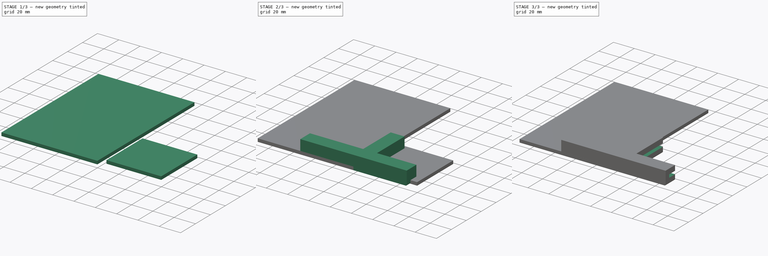
[diagram: build sequence overview — one tinted view per stage of 3, left to right]
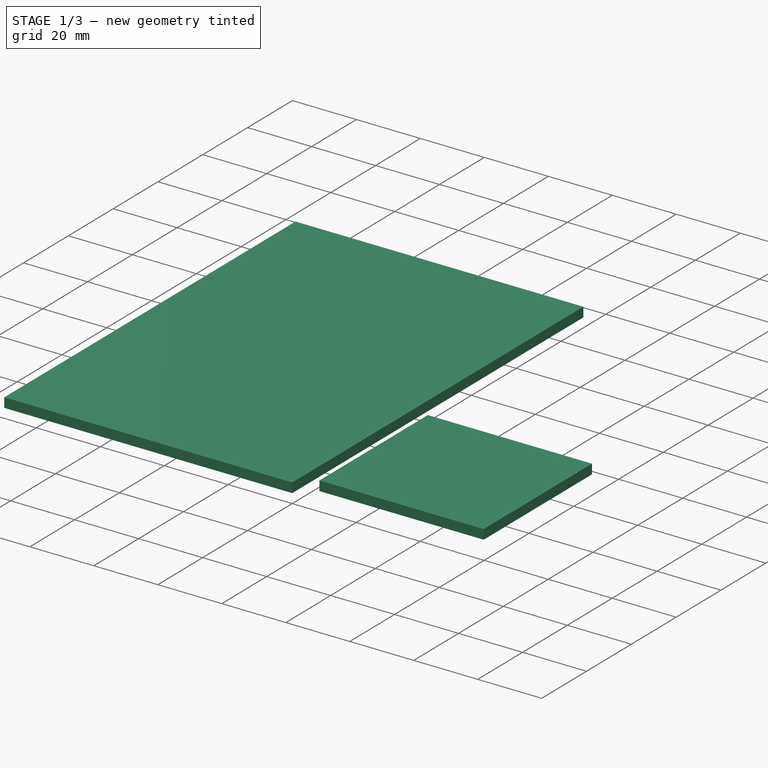
[diagram: stage 1 of 3 — iso view after this stage's code; geometry added in this stage tinted green]
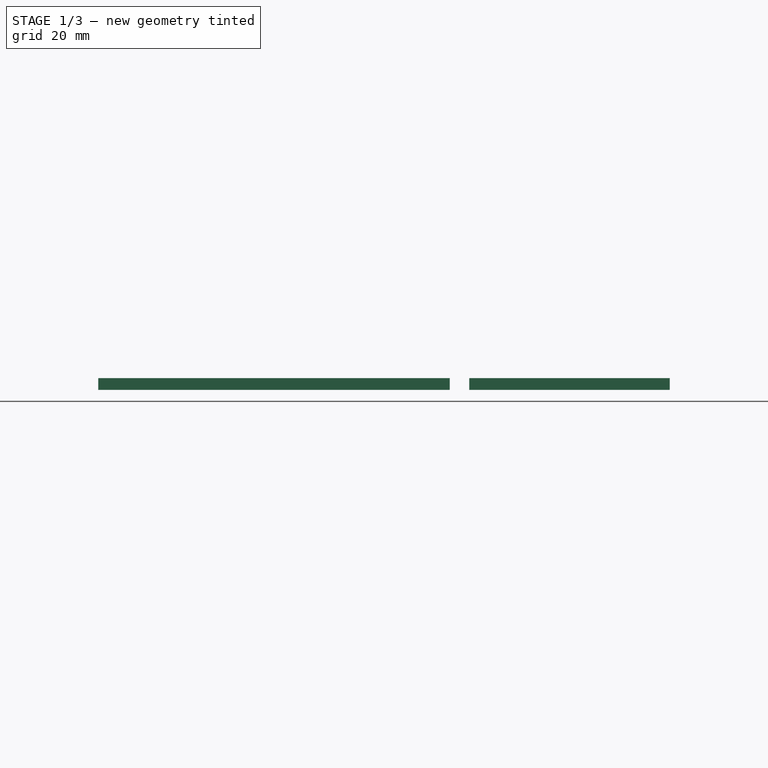
[diagram: stage 1 of 3 — front view after this stage's code; geometry added in this stage tinted green]
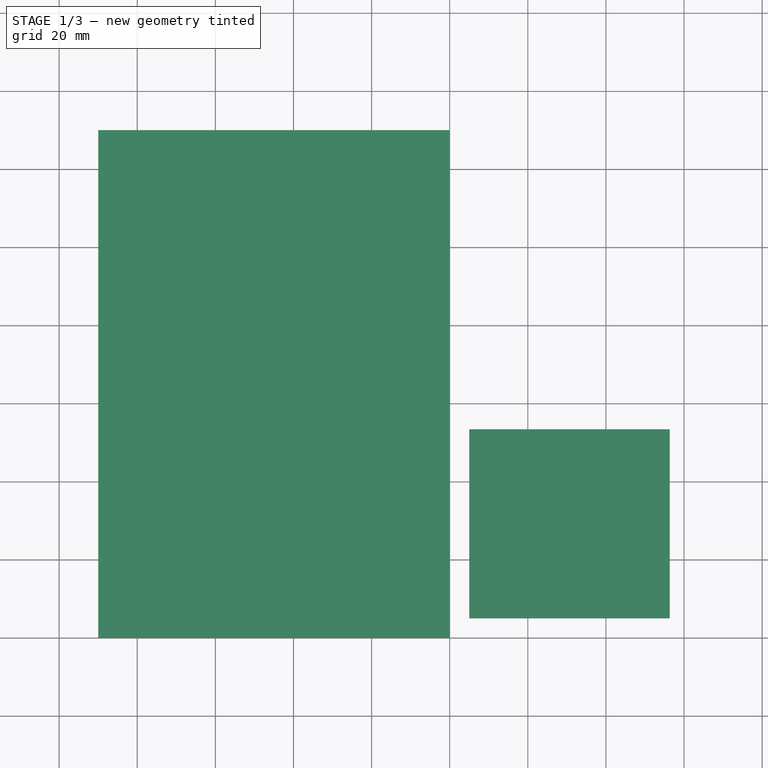
[diagram: stage 1 of 3 — top view after this stage's code; geometry added in this stage tinted green]
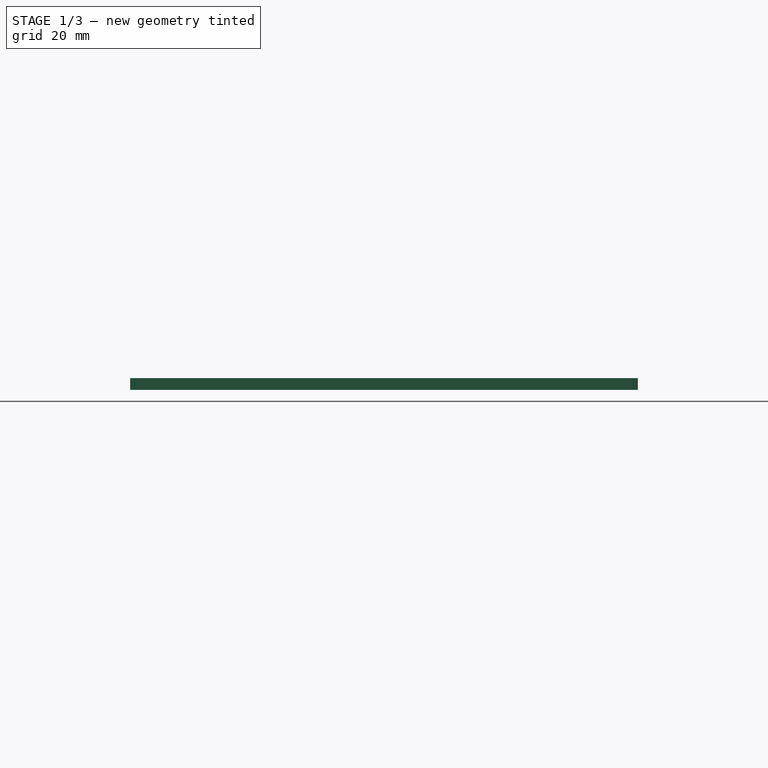
[diagram: stage 1 of 3 — right view after this stage's code; geometry added in this stage tinted green]
FCSTD DOCUMENT  (FreeCAD 1.0R39319 (Git))
Label: corner-extension
License: All rights reserved
LicenseURL: https://en.wikipedia.org/wiki/All_rights_reserved
objects: Sketcher::SketchObject×4, PartDesign::Pad×3, PartDesign::Body×3, PartDesign::Fillet×2, Part::Cut×1
note: 27 computed .brp shape members not serialized (recipe doc carries the construction recipe); baked Part::Feature solids carry a one-line shape summary decoded from their .brp

FEATURE [PartDesign::Body] Body
  AllowCompound = false
  Group = -> [Sketch,Pad,Fillet,Fillet001]
  Origin = -> Origin
  Tip = -> Fillet001
FEATURE [Sketcher::SketchObject] Sketch001
  ArcFitTolerance = 1e-06
  AttachmentSupport = -> [XY_Plane001]
  FullyConstrained = false
  MakeInternals = false
  MapMode = 5
  sketch-geometry (4):
    g0: LineSegment StartX=5 StartY=53.3742 StartZ=0 EndX=5 EndY=5 EndZ=0
    g1: LineSegment StartX=5 StartY=5 StartZ=0 EndX=56.3509 EndY=5 EndZ=0
    g2: LineSegment StartX=56.3509 StartY=5 StartZ=0 EndX=56.3509 EndY=53.3742 EndZ=0
    g3: LineSegment StartX=56.3509 StartY=53.3742 StartZ=0 EndX=5 EndY=53.3742 EndZ=0
  constraints (10):
    c: Coincident(g0,g1)
    c: Coincident(g1,g2)
    c: Coincident(g2,g3)
    c: Coincident(g3,g0)
    c: Vertical(g0)
    c: Vertical(g2)
    c: Horizontal(g1)
    c: Horizontal(g3)
    c: DistanceX(g-1,g0) = 5
    c: DistanceY(g-1,g1) = 5
FEATURE [PartDesign::Pad] Pad001
  Direction = (0,0,1)
  Length = 3
  Length2 = 10
  Profile = -> Sketch001
  ReferenceAxis = -> Sketch001 [N_Axis]
  Refine = true
  Suppressed = false
  Type = 0
FEATURE [Sketcher::SketchObject] Sketch003
  ArcFitTolerance = 1e-06
  AttachmentSupport = -> [XY_Plane002]
  FullyConstrained = true
  MakeInternals = false
  MapMode = 5
  sketch-geometry (4):
    g0: LineSegment StartX=0 StartY=0 StartZ=0 EndX=0 EndY=130 EndZ=0
    g1: LineSegment StartX=0 StartY=130 StartZ=0 EndX=-90 EndY=130 EndZ=0
    g2: LineSegment StartX=-90 StartY=130 StartZ=0 EndX=-90 EndY=0 EndZ=0
    g3: LineSegment StartX=-90 StartY=0 StartZ=0 EndX=0 EndY=0 EndZ=0
  constraints (11):
    c: Coincident(g0,g1)
    c: Coincident(g1,g2)
    c: Coincident(g2,g3)
    c: Coincident(g3,g0)
    c: Vertical(g0)
    c: Vertical(g2)
    c: Horizontal(g1)
    c: Horizontal(g3)
    c: Coincident(g0,g-1)
    c: DistanceX(g2,g0) = 90
    c: DistanceY(g2,g1) = 130
FEATURE [PartDesign::Pad] Pad002
  Direction = (0,0,1)
  Length = 3
  Length2 = 10
  Profile = -> Sketch003
  ReferenceAxis = -> Sketch003 [N_Axis]
  Refine = true
  Suppressed = false
  Type = 0
FEATURE [PartDesign::Body] Body002
  AllowCompound = false
  Group = -> [Sketch003,Pad002]
  Origin = -> Origin002
  Placement = pos=(0,5,5) rot=(0,0,1;0rad)
  Tip = -> Pad002
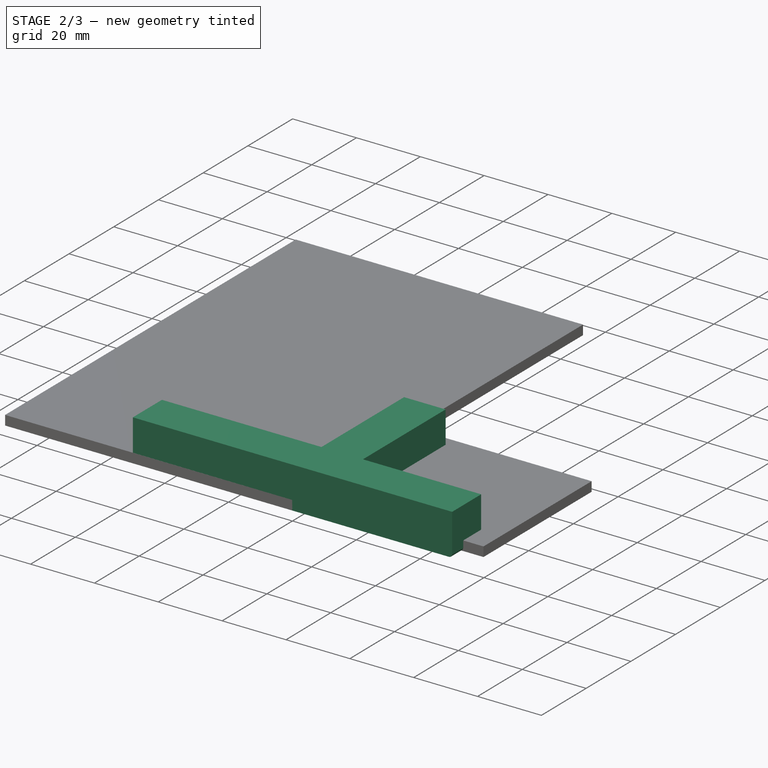
[diagram: stage 2 of 3 — iso view after this stage's code; geometry added in this stage tinted green]
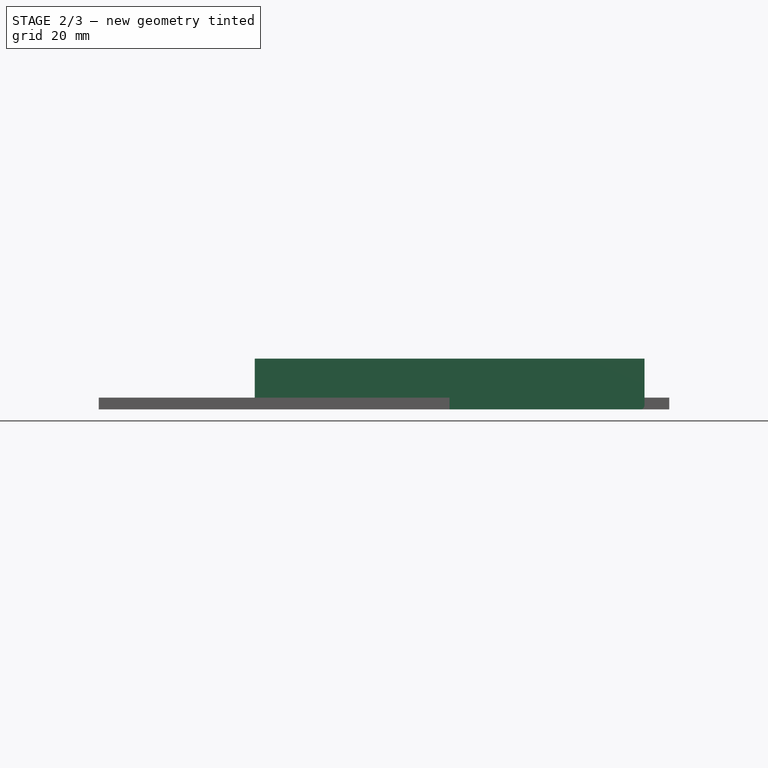
[diagram: stage 2 of 3 — front view after this stage's code; geometry added in this stage tinted green]
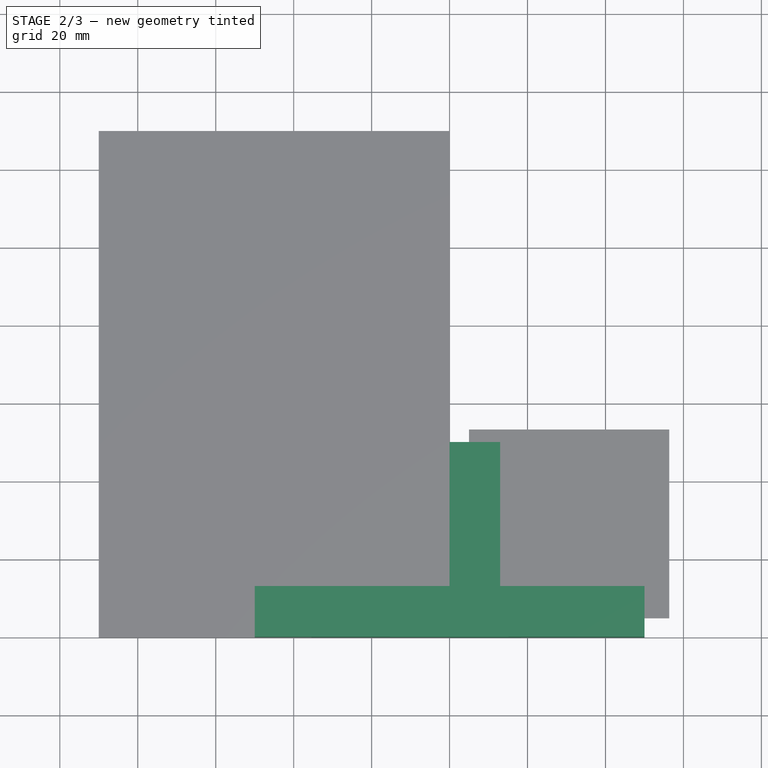
[diagram: stage 2 of 3 — top view after this stage's code; geometry added in this stage tinted green]
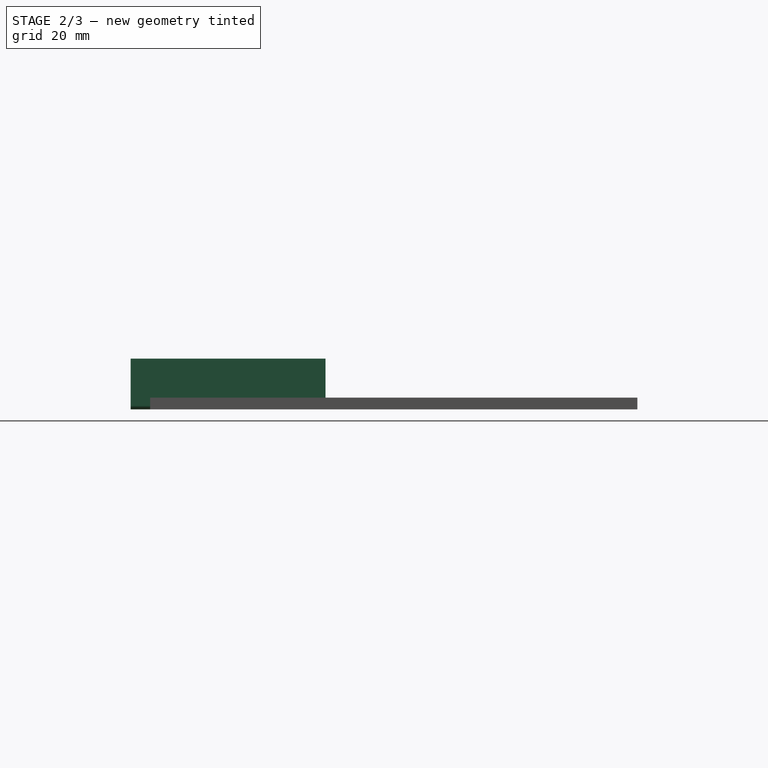
[diagram: stage 2 of 3 — right view after this stage's code; geometry added in this stage tinted green]
FEATURE [Sketcher::SketchObject] Sketch
  ArcFitTolerance = 1e-06
  AttachmentSupport = -> [XY_Plane]
  FullyConstrained = false
  MakeInternals = false
  MapMode = 5
  sketch-geometry (9):
    g0: LineSegment StartX=0 StartY=0 StartZ=0 EndX=50 EndY=0.034546 EndZ=0
    g1: LineSegment StartX=50 StartY=0.034546 StartZ=0 EndX=50 EndY=13.0345 EndZ=0
    g2: LineSegment StartX=50 StartY=13.0345 StartZ=0 EndX=12.9713 EndY=13.0345 EndZ=0
    g3: LineSegment StartX=12.9713 StartY=13.0345 StartZ=0 EndX=12.9713 EndY=50 EndZ=0
    g4: LineSegment StartX=12.9713 StartY=50 StartZ=0 EndX=-0.028724 EndY=50 EndZ=0
    g5: LineSegment StartX=-0.028724 StartY=50 StartZ=0 EndX=-0.028724 EndY=13.0345 EndZ=0
    g6: LineSegment StartX=-0.028724 StartY=13.0345 StartZ=0 EndX=-50 EndY=13.0345 EndZ=0
    g7: LineSegment StartX=-50 StartY=13.0345 StartZ=0 EndX=-50 EndY=0.034546 EndZ=0
    g8: LineSegment StartX=-50 StartY=0.034546 StartZ=0 EndX=0 EndY=0 EndZ=0
  constraints (23):
    c: Coincident(g-1,g0)
    c: Coincident(g0,g1)
    c: Vertical(g1)
    c: Coincident(g1,g2)
    c: Horizontal(g2)
    c: Coincident(g2,g3)
    c: Vertical(g3)
    c: Coincident(g3,g4)
    c: Horizontal(g4)
    c: Coincident(g4,g5)
    c: Vertical(g5)
    c: Coincident(g5,g6)
    c: Horizontal(g6)
    c: Coincident(g6,g7)
    c: Vertical(g7)
    c: Coincident(g7,g8)
    c: Coincident(g8,g0)
    c: DistanceX(g7,g0) = 50
    c: DistanceX(g0,g0) = 50
    c: DistanceX(g4,g3) = 13
    c: DistanceY(g7,g6) = 13
    c: DistanceY(g0,g1) = 13
    c: DistanceY(g0,g3) = 50
FEATURE [PartDesign::Pad] Pad
  Direction = (0,0,1)
  Length = 13
  Length2 = 10
  Profile = -> Sketch
  ReferenceAxis = -> Sketch [N_Axis]
  Refine = true
  Suppressed = false
  Type = 0
FEATURE [PartDesign::Fillet] Fillet
  Base = -> Pad [Edge6,Edge9,Edge12]
  BaseFeature = -> Pad
  Radius = 1
  Refine = true
  SupportTransform = false
  Suppressed = false
  UseAllEdges = false
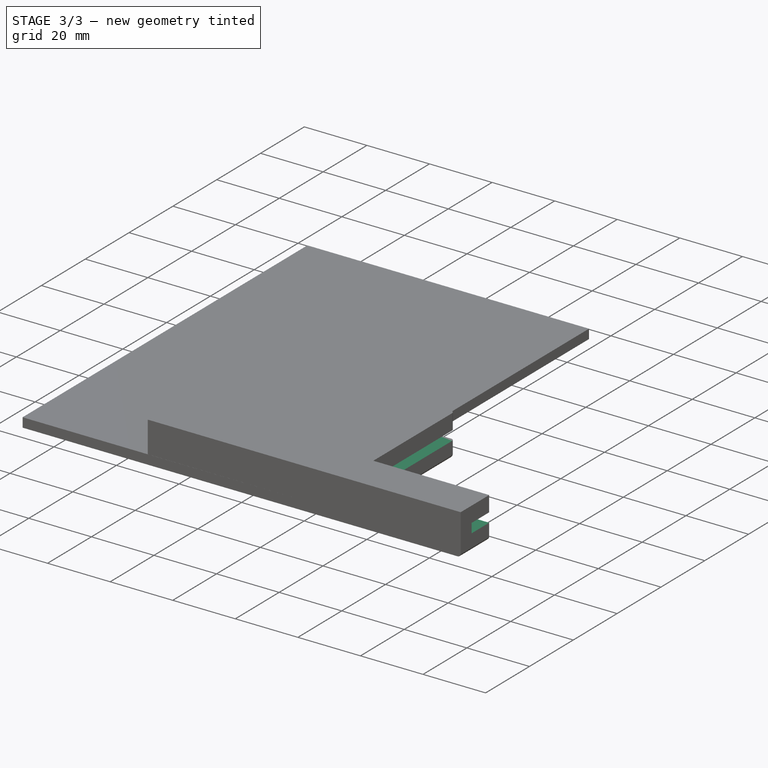
[diagram: stage 3 of 3 — iso view after this stage's code; geometry added in this stage tinted green]
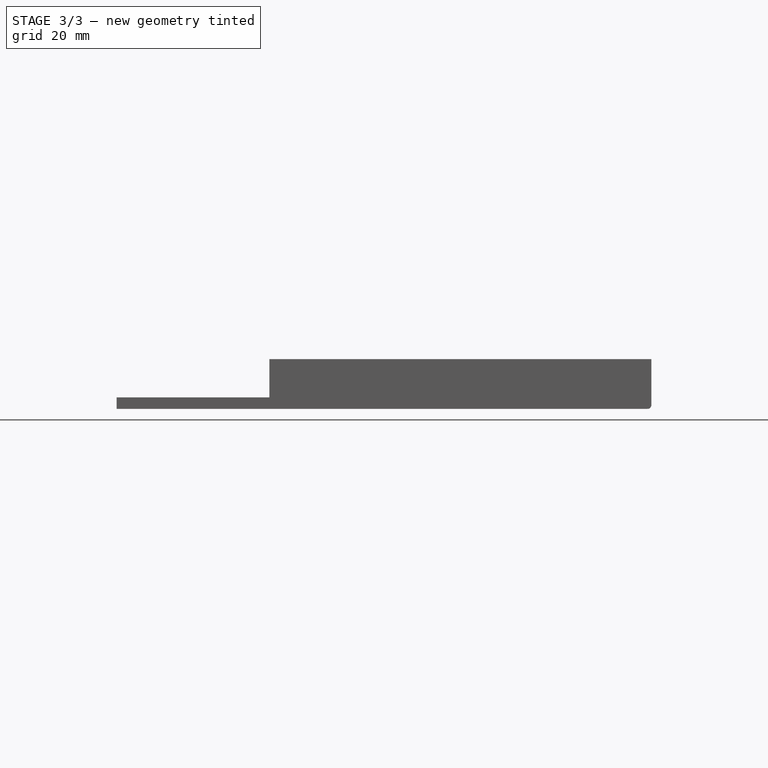
[diagram: stage 3 of 3 — front view after this stage's code; geometry added in this stage tinted green]
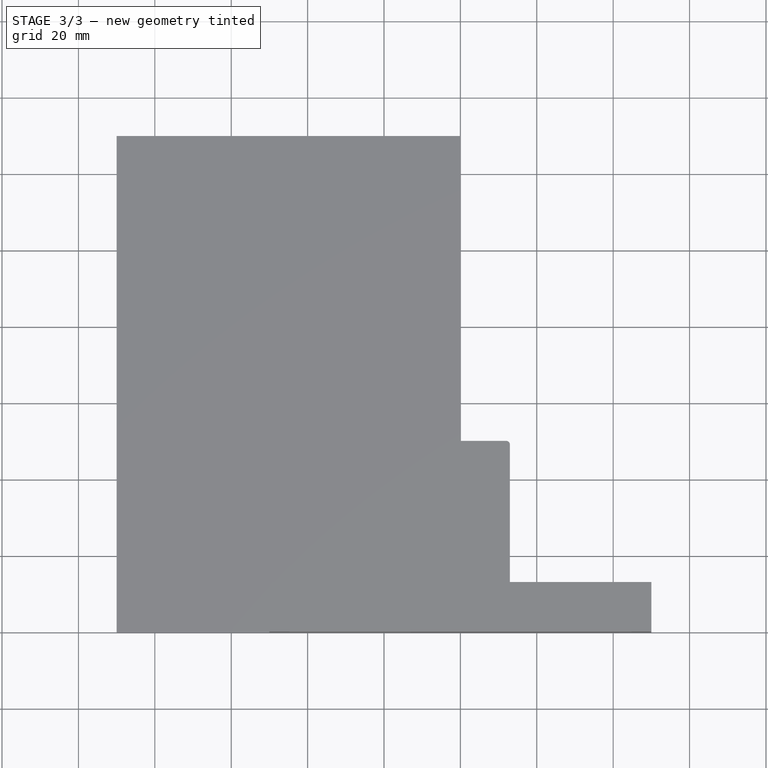
[diagram: stage 3 of 3 — top view after this stage's code; geometry added in this stage tinted green]
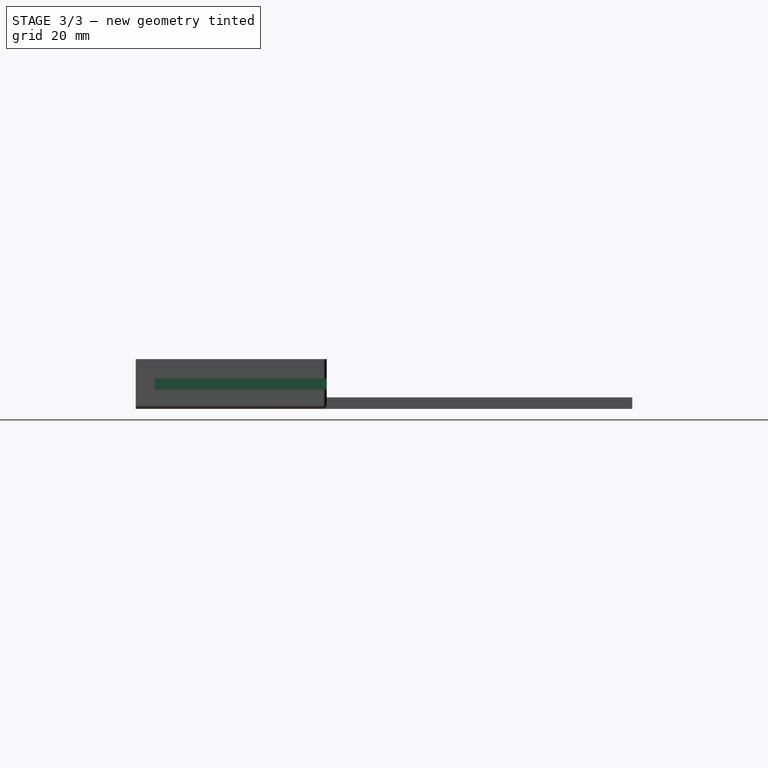
[diagram: stage 3 of 3 — right view after this stage's code; geometry added in this stage tinted green]
FEATURE [PartDesign::Fillet] Fillet001
  Base = -> Fillet [Edge23,Edge24,Edge22,Edge20]
  BaseFeature = -> Fillet
  Radius = 1
  Refine = true
  SupportTransform = false
  Suppressed = false
  UseAllEdges = false
FEATURE [Sketcher::SketchObject] Sketch002
  ArcFitTolerance = 1e-06
  AttachmentSupport = -> [XY_Plane001]
  FullyConstrained = false
  MakeInternals = false
  MapMode = 5
  sketch-geometry (4):
    g0: LineSegment StartX=0 StartY=0 StartZ=0 EndX=0 EndY=80.5748 EndZ=0
    g1: LineSegment StartX=0 StartY=80.5748 StartZ=0 EndX=-133.413 EndY=80.5748 EndZ=0
    g2: LineSegment StartX=-133.413 StartY=80.5748 StartZ=0 EndX=-133.413 EndY=0 EndZ=0
    g3: LineSegment StartX=-133.413 StartY=0 StartZ=0 EndX=0 EndY=0 EndZ=0
  constraints (9):
    c: Coincident(g0,g1)
    c: Coincident(g1,g2)
    c: Coincident(g2,g3)
    c: Coincident(g3,g0)
    c: Vertical(g0)
    c: Vertical(g2)
    c: Horizontal(g1)
    c: Horizontal(g3)
    c: Coincident(g0,g-1)
FEATURE [PartDesign::Body] Body001
  AllowCompound = false
  Group = -> [Sketch001,Pad001,Sketch002]
  Origin = -> Origin001
  Placement = pos=(0,0,5) rot=(0,0,1;0rad)
  Tip = -> Pad001
FEATURE [Part::Cut] Cut
  Base = -> Body
  Tool = -> Body001
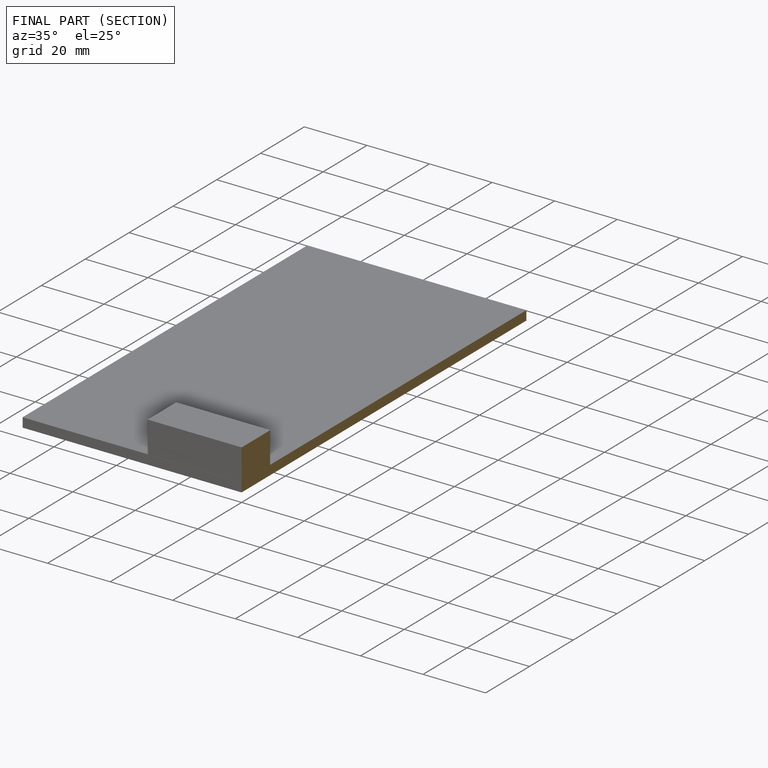
[diagram: finished part — half-section view (interior)]
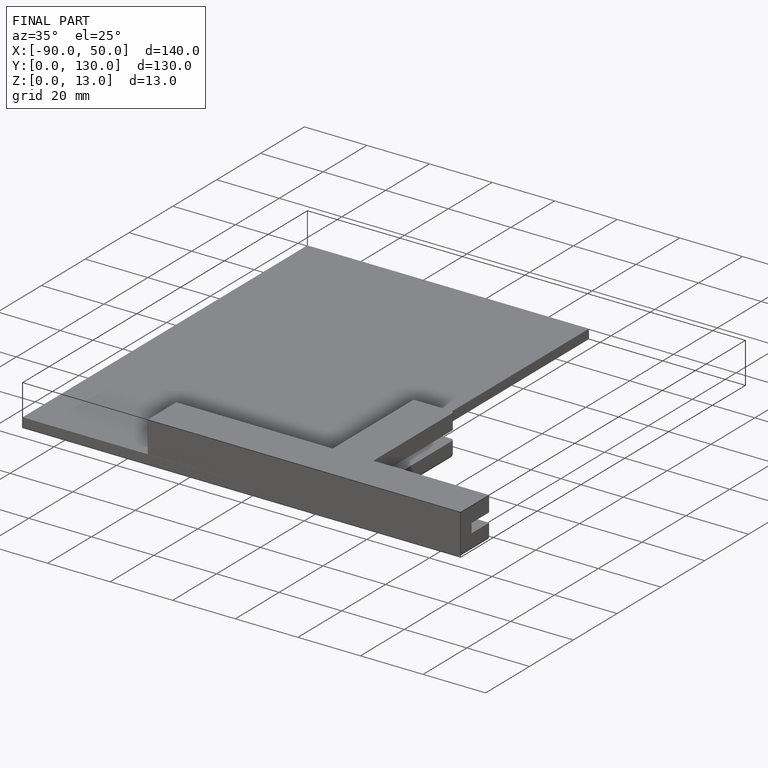
[diagram: finished part — iso view with bounding-box wireframe]
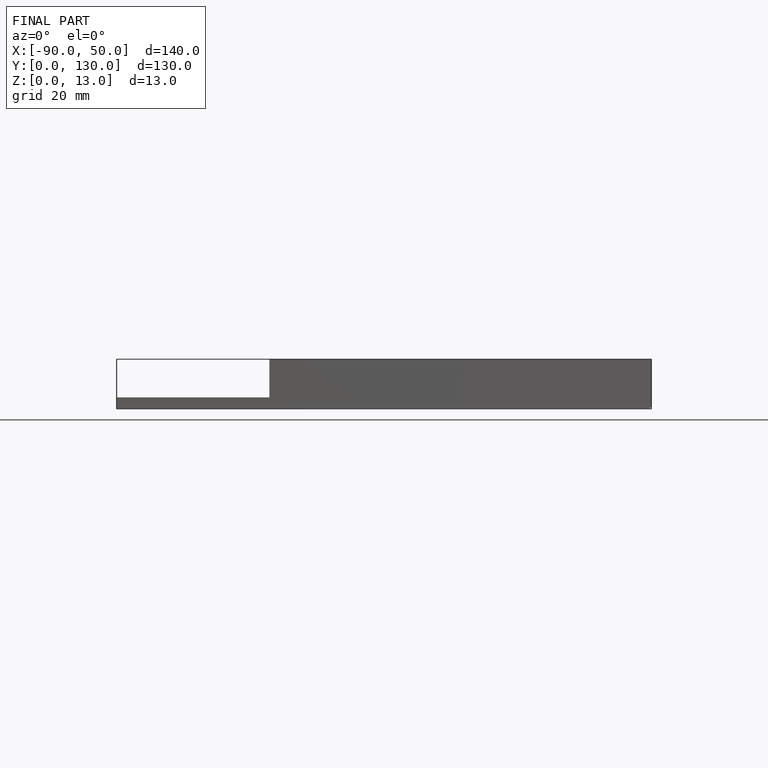
[diagram: finished part — front view with bounding-box wireframe]
